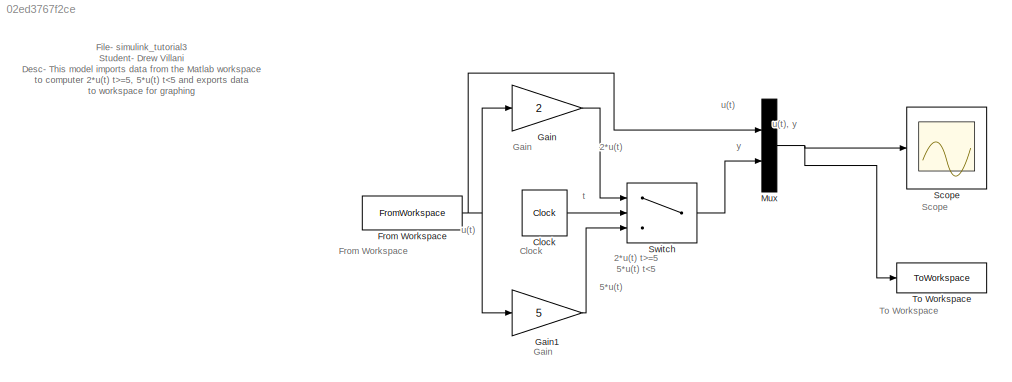
MODEL slx_02ed3767f2ce
KIND model
CONFIG AbsTol = auto
CONFIG EnableMultiTasking = off
CONFIG FixedStep = auto
CONFIG MaxStep = auto
CONFIG MinStep = auto
CONFIG RelTol = 1e-3
CONFIG SampleTimeConstraint = Unconstrained
CONFIG SolverName = VariableStepAuto
CONFIG StartTime = 0.0
CONFIG StopTime = 10.0
BLOCK [Clock] Clock
BLOCK [FromWorkspace] From Workspace
  VariableName = simin
BLOCK [Gain] Gain
  Gain = 2
BLOCK [Gain] Gain1
  Gain = 5
BLOCK [Mux] Mux
  DisplayOption = bar
  Inputs = 2
BLOCK [Scope] Scope
  Floating = off
  NumInputPorts = 1
  ScopeSpecificationString = Simulink.scopes.TimeScopeBlockCfg('CurrentConfiguration', extmgr.ConfigurationSet(extmgr.Configuration('Core','General UI',true),extmgr.Configuration('Core','Source UI',true),extmgr.Configuration('Sources','WiredSimulink',true),extmgr.Configuration('Visuals','Time Domain',true,'SerializedDisplays',{struct('MinYLimReal','-6.2042','MaxYLimReal','6.24437','YLabelReal','','MinYLimMag','0.00000','MaxYL...<+1449ch>
BLOCK [Switch] Switch
  Criteria = u2 > Threshold
  InputSameDT = off
  SaturateOnIntegerOverflow = off
  Threshold = 5
BLOCK [ToWorkspace] To Workspace
  FixptAsFi = on
  MaxDataPoints = inf
  SampleTime = -1
  SaveFormat = Timeseries
  VariableName = output
ANNOTATION (root): 2*u(t)
ANNOTATION (root): 2*u(t) t>=5 5*u(t) t<5
ANNOTATION (root): 5*u(t)
ANNOTATION (root): Clock
ANNOTATION (root): File- simulink_tutorial3 Student- Drew Villani Desc- This model imports data from the Matlab workspace to computer 2*u(t) t>=5, 5*u(t) t<5 and exports data to workspace for graphing
ANNOTATION (root): From Workspace
ANNOTATION (root): Gain
ANNOTATION (root): Scope
ANNOTATION (root): To Workspace
ANNOTATION (root): t
ANNOTATION (root): u(t)
ANNOTATION (root): u(t), y
ANNOTATION (root): y
LINE Clock:1 -> Switch:2
NET From Workspace:1 -> Gain1:1, Gain:1, Mux:1
LINE Gain1:1 -> Switch:3
LINE Gain:1 -> Switch:1
NET Mux:1 -> Scope:1, To Workspace:1
LINE Switch:1 -> Mux:2
note: NET lines group one-source signal fan-out (src -> all destinations, sorted); 1:1 wires keep LINE
